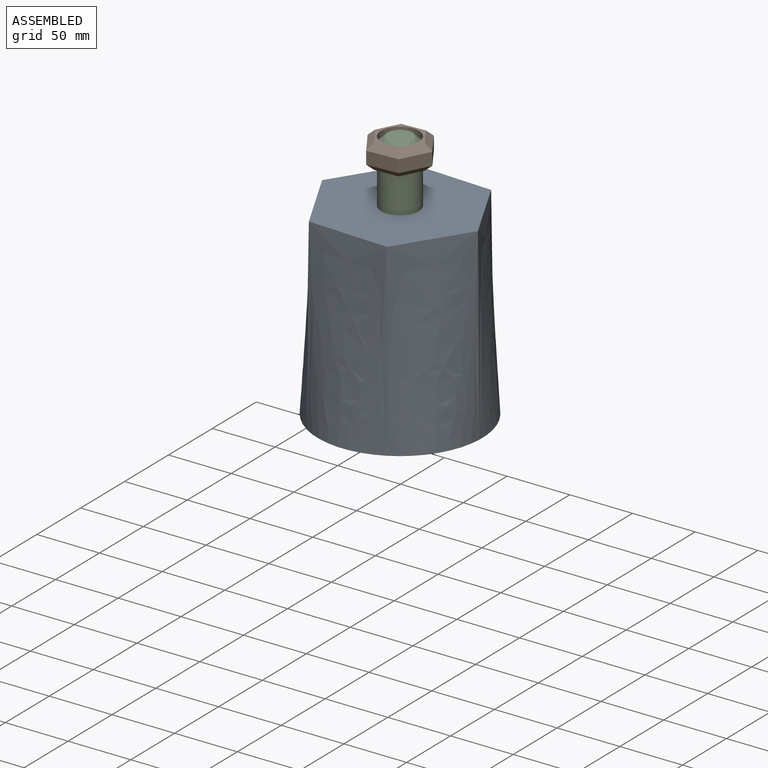
[diagram: assembled view]
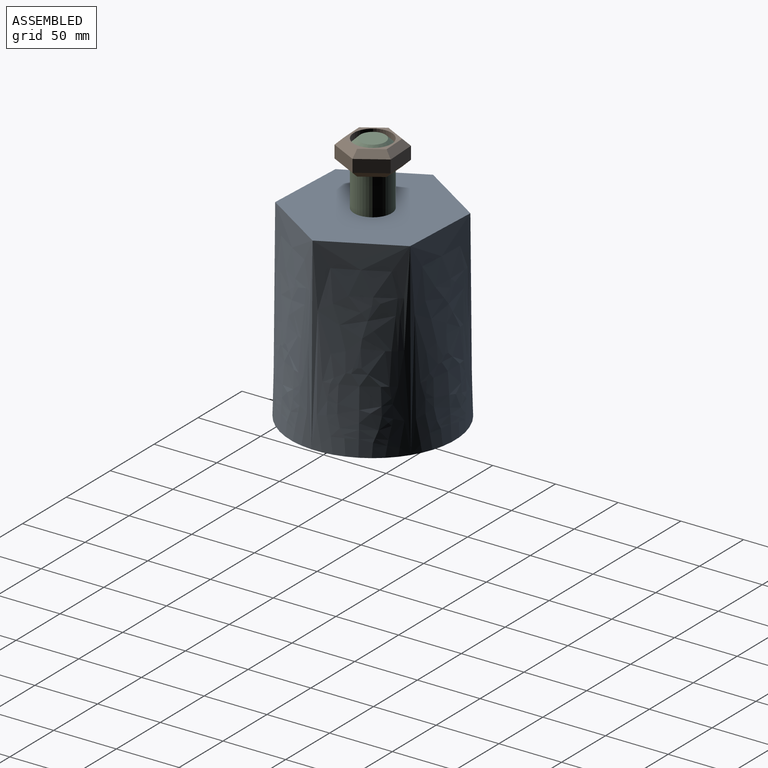
[diagram: assembled view, second angle]
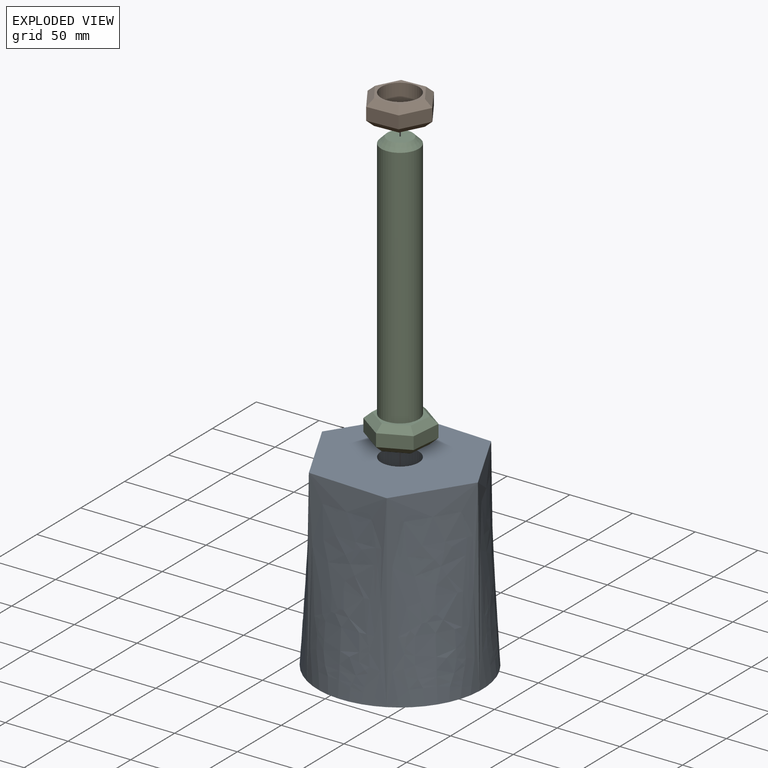
[diagram: exploded view]
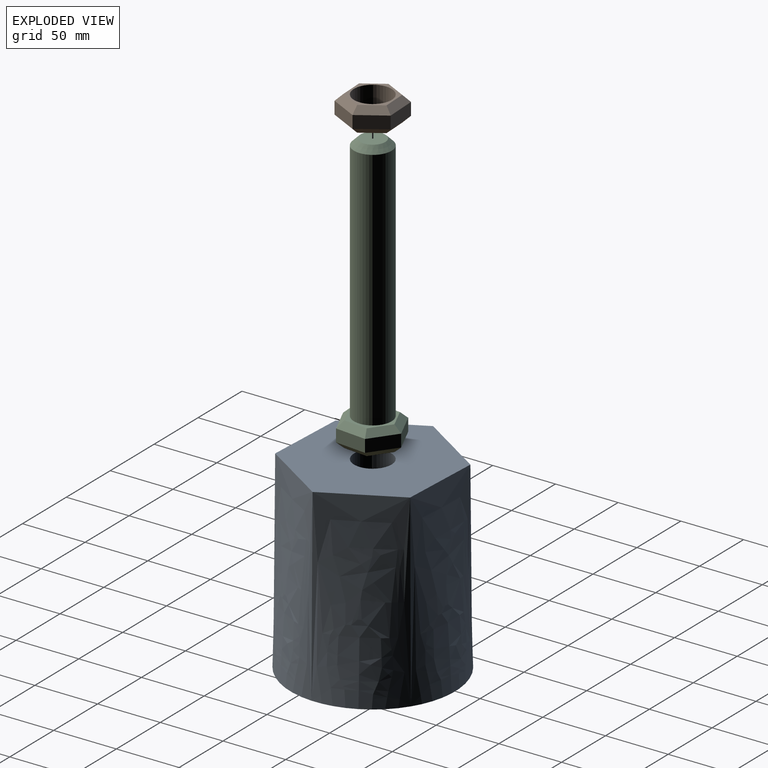
[diagram: exploded view, second angle]
ASSEMBLY  parts=3 mates=2
PART A: 9 faces, bbox 131.6x131.6x150 mm
  f0: plane 128.54x114.38mm, normal (0,0,1), area 10049mm2, adj f2,f3,f4,f5,f6,f7,f8
  f1: plane 131.25x131.25mm, normal (0,0,-1), area 12802.2mm2, adj f2,f3,f4,f5,f6,f7,f8
  f2: bspline ~150x55.22mm, area 9912.6mm2, adj f0,f1,f3,f7
  f3: bspline ~150x65.5mm, area 9912.6mm2, adj f0,f1,f2,f4
  f4: bspline ~150x58.29mm, area 9912.6mm2, adj f0,f1,f3,f5
  f5: bspline ~150x55.22mm, area 9912.6mm2, adj f0,f1,f4,f6
  f6: bspline ~150x65.5mm, area 9912.6mm2, adj f0,f1,f5,f7
  f7: bspline ~150x58.29mm, area 9912.6mm2, adj f0,f1,f2,f6
  f8: cylinder r=15mm len=150mm, axis (0,0,-1), area 14137.2mm2, adj f0,f1
PART B: 21 faces, bbox 49.9x44.5x20 mm
  f0: plane 24.97x10mm, normal (0.05,-1,0), area 250mm2, adj f1,f5,f13,f19
  f1: plane 22.25x11.4mm, normal (0.89,-0.46,0), area 250mm2, adj f0,f2,f14,f20
  f2: plane 21x13.57mm, normal (0.84,0.54,0), area 250mm2, adj f1,f3,f12,f18
  f3: plane 24.97x10mm, normal (-0.05,1,0), area 250mm2, adj f2,f4,f10,f16
  f4: plane 22.25x11.4mm, normal (-0.89,0.46,0), area 250mm2, adj f3,f5,f9,f15
  f5: plane 21x13.57mm, normal (-0.84,-0.54,0), area 250mm2, adj f0,f4,f11,f17
  f6: plane 38.41x34.22mm, normal (0,0,1), area 253.5mm2, adj f8,f15,f16,f17,f18,f19,f20
  f7: plane 38.41x34.22mm, normal (0,0,-1), area 253.5mm2, adj f8,f9,f10,f11,f12,f13,f14
  f8: cylinder r=15mm len=30mm, axis (0,0,-1), area 1885mm2, adj f6,f7
  f9: plane 22.25x14.53mm, normal (-0.63,0.32,-0.71), area 156.4mm2, adj f4,f7,f10,f11
  f10: plane 24.97x6.1mm, normal (-0.04,0.71,-0.71), area 156.4mm2, adj f3,f7,f9,f12
  f11: plane 21.29x16.2mm, normal (-0.59,-0.38,-0.71), area 156.4mm2, adj f5,f7,f9,f13
  f12: plane 21.29x16.2mm, normal (0.59,0.38,-0.71), area 156.4mm2, adj f2,f7,f10,f14
  f13: plane 24.97x6.1mm, normal (0.04,-0.71,-0.71), area 156.4mm2, adj f0,f7,f11,f14
  f14: plane 22.25x14.53mm, normal (0.63,-0.32,-0.71), area 156.4mm2, adj f1,f7,f12,f13
  f15: plane 22.25x14.53mm, normal (-0.63,0.32,0.71), area 156.4mm2, adj f4,f6,f16,f17
  f16: plane 24.97x6.1mm, normal (-0.04,0.71,0.71), area 156.4mm2, adj f3,f6,f15,f18
  f17: plane 21.29x16.2mm, normal (-0.59,-0.38,0.71), area 156.4mm2, adj f5,f6,f15,f19
  f18: plane 21.29x16.2mm, normal (0.59,0.38,0.71), area 156.4mm2, adj f2,f6,f16,f20
  f19: plane 24.97x6.1mm, normal (0.04,-0.71,0.71), area 156.4mm2, adj f0,f6,f17,f20
  f20: plane 22.25x14.53mm, normal (0.63,-0.32,0.71), area 156.4mm2, adj f1,f6,f18,f19
PART C: 23 faces, bbox 45.6x49.8x220 mm
  f0: plane 22.78x10.3mm, normal (0.41,-0.91,0), area 250mm2, adj f1,f5,f13,f20
  f1: plane 24.88x10mm, normal (1,-0.1,0), area 250mm2, adj f0,f2,f11,f18
  f2: plane 20.31x14.58mm, normal (0.58,0.81,0), area 250mm2, adj f1,f3,f10,f17
  f3: plane 22.78x10.3mm, normal (-0.41,0.91,0), area 250mm2, adj f2,f4,f12,f19
  f4: plane 24.88x10mm, normal (-1,0.1,0), area 250mm2, adj f3,f5,f14,f21
  f5: plane 20.31x14.58mm, normal (-0.58,-0.81,0), area 250mm2, adj f0,f4,f15,f22
  f6: plane 38.27x35.04mm, normal (0,0,1), area 253.5mm2, adj f8,f10,f11,f12,f13,f14,f15
  f7: plane 38.27x35.04mm, normal (0,0,-1), area 960.4mm2, adj f17,f18,f19,f20,f21,f22
  f8: cylinder r=15mm len=195mm, axis (0,0,-1), area 18378.3mm2, adj f6,f16
  f9: plane 20x20mm, normal (0,0,1), area 314.2mm2, adj f16
  f10: plane 20.88x16.95mm, normal (0.41,0.57,0.71), area 156.4mm2, adj f2,f6,f11,f12
  f11: plane 24.88x7.16mm, normal (0.7,-0.07,0.71), area 156.4mm2, adj f1,f6,f10,f13
  f12: plane 22.78x13.67mm, normal (-0.29,0.64,0.71), area 156.4mm2, adj f3,f6,f10,f14
  f13: plane 22.78x13.67mm, normal (0.29,-0.64,0.71), area 156.4mm2, adj f0,f6,f11,f15
  f14: plane 24.88x7.16mm, normal (-0.7,0.07,0.71), area 156.4mm2, adj f4,f6,f12,f15
  f15: plane 20.88x16.95mm, normal (-0.41,-0.57,0.71), area 156.4mm2, adj f5,f6,f13,f14
  f16: cone r=10mm half-angle=45deg, axis (0,0,-1), area 555.4mm2, adj f8,f9
  f17: plane 20.88x16.95mm, normal (0.41,0.57,-0.71), area 156.4mm2, adj f2,f7,f18,f19
  f18: plane 24.88x7.16mm, normal (0.7,-0.07,-0.71), area 156.4mm2, adj f1,f7,f17,f20
  f19: plane 22.78x13.67mm, normal (-0.29,0.64,-0.71), area 156.4mm2, adj f3,f7,f17,f21
  f20: plane 22.78x13.67mm, normal (0.29,-0.64,-0.71), area 156.4mm2, adj f0,f7,f18,f22
  f21: plane 24.88x7.16mm, normal (-0.7,0.07,-0.71), area 156.4mm2, adj f4,f7,f19,f22
  f22: plane 20.88x16.95mm, normal (-0.41,-0.57,-0.71), area 156.4mm2, adj f5,f7,f20,f21
PLACE A t=(-16.73,37.76,-3.86)mm
PLACE B t=(-16.73,37.76,176.14)mm
PLACE C t=(-16.73,37.76,-23.86)mm
MATE fastened B.f8 <-> C.f8  axis (0,0,1) through (-16.73,37.76,196.14)mm
MATE fastened C.f8 <-> A.f8  axis (0,0,1) through (-16.73,37.76,-3.86)mm
